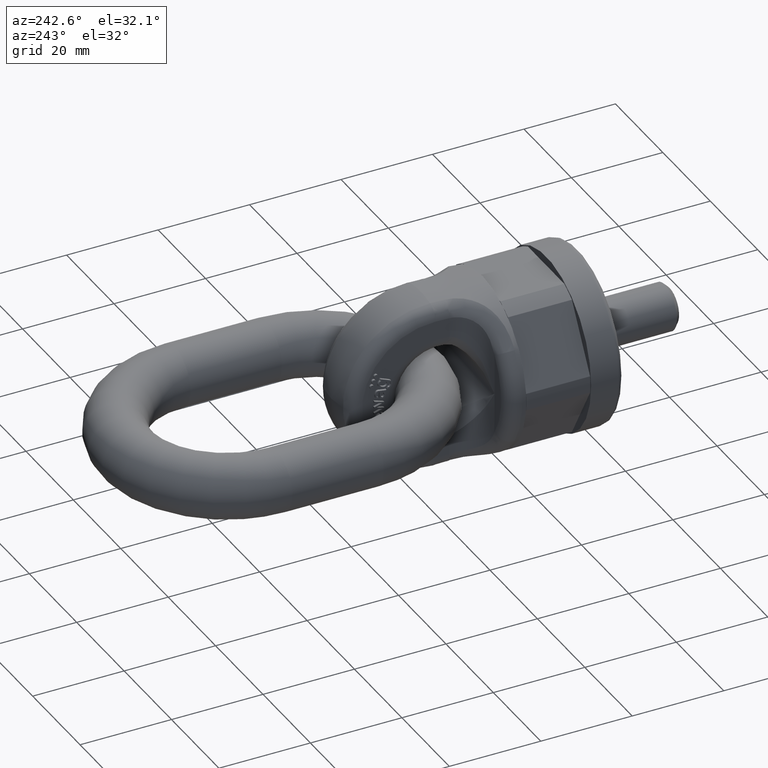
[diagram: clean part render]
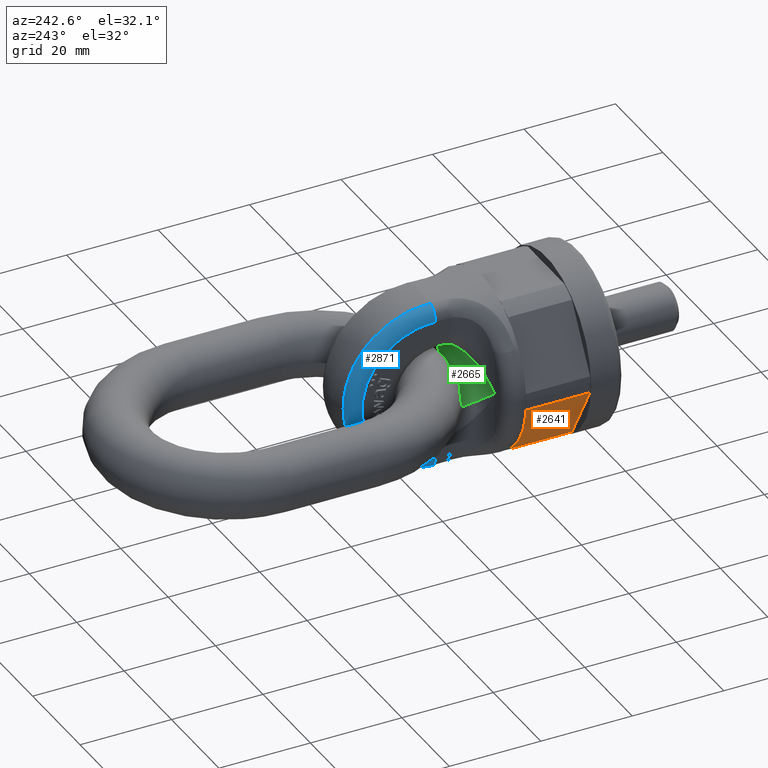
[diagram: same view with three faces highlighted in distinct colors, each labeled with its STEP entity id]
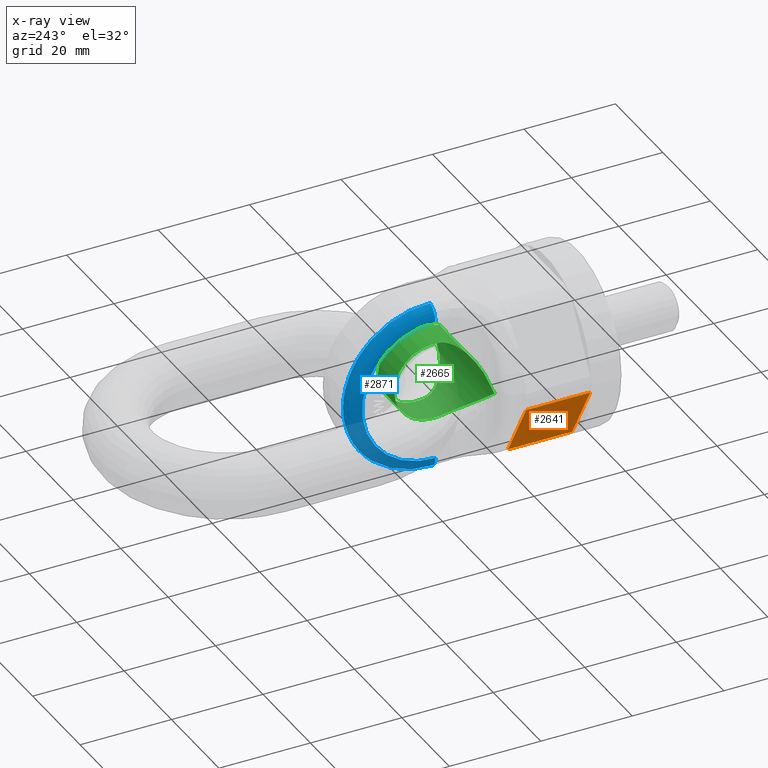
[diagram: x-ray of the same camera — body ghosted, the three highlighted faces saturated]
A machine part, auxiliary view with three faces highlighted in distinct colors.
The next image is the same camera in x-ray (body ghosted, the three faces saturated) — at least one of them is partly hidden behind the body in this view.
Their STEP definitions:

[orange] entity #2641 — the highlighted planar face has unit normal (-0.866, 0, -0.5).
#1799=FACE_OUTER_BOUND('',#3064,.T.);
#2036=LINE('',#6582,#2292);
#2042=LINE('',#6603,#2298);
#2043=LINE('',#6605,#2299);
#2044=LINE('',#6607,#2300);
#2292=VECTOR('',#5820,1.);
#2298=VECTOR('',#5840,1.);
#2299=VECTOR('',#5841,1.);
#2300=VECTOR('',#5842,1.);
#2641=ADVANCED_FACE('',(#1799),#2883,.T.);
#2883=PLANE('',#5610);
#3064=EDGE_LOOP('',(#3364,#3365,#3366,#3367));
#3364=ORIENTED_EDGE('',*,*,#4952,.F.);
#3365=ORIENTED_EDGE('',*,*,#4942,.T.);
#3366=ORIENTED_EDGE('',*,*,#4953,.F.);
#3367=ORIENTED_EDGE('',*,*,#4954,.T.);
#4544=VERTEX_POINT('',#6581);
#4545=VERTEX_POINT('',#6583);
#4553=VERTEX_POINT('',#6604);
#4554=VERTEX_POINT('',#6606);
#4942=EDGE_CURVE('',#4545,#4544,#2036,.T.);
#4952=EDGE_CURVE('',#4545,#4553,#2042,.T.);
#4953=EDGE_CURVE('',#4554,#4544,#2043,.T.);
#4954=EDGE_CURVE('',#4554,#4553,#2044,.T.);
#5610=AXIS2_PLACEMENT_3D('',#6608,#5843,#5844);
#5820=DIRECTION('',(-0.499999999999999,-1.91351062366774E-17,0.866025403784439));
#5840=DIRECTION('',(-2.4492935982947E-17,1.,0.));
#5841=DIRECTION('',(2.4492935982947E-17,-1.,0.));
#5842=DIRECTION('',(0.499999999999999,0.,-0.866025403784439));
#5843=DIRECTION('',(-0.866025403784439,0.,-0.499999999999999));
#5844=DIRECTION('',(-0.499999999999999,0.,0.866025403784439));
#6581=CARTESIAN_POINT('',(-18.5552941542323,7.,-1.86128777548383));
#6582=CARTESIAN_POINT('',(-9.97243186433546,7.,-16.7272413359521));
#6583=CARTESIAN_POINT('',(-10.8895695744386,7.,-15.1387122245161));
#6603=CARTESIAN_POINT('',(-10.8895695744386,9.38780506978953E-17,-15.1387122245161));
#6604=CARTESIAN_POINT('',(-10.8895695744386,21.,-15.1387122245161));
#6605=CARTESIAN_POINT('',(-18.5552941542323,-9.38780506978953E-17,-1.86128777548383));
#6606=CARTESIAN_POINT('',(-18.5552941542323,21.,-1.86128777548383));
#6607=CARTESIAN_POINT('',(-19.6299091524472,21.,0.));
#6608=CARTESIAN_POINT('',(-19.6299091524472,21.,0.));

[blue] entity #2871 — the highlighted toroidal blend (fillet) surface has major radius 15.6125 mm and minor (blend) radius 3 mm.
#1794=TOROIDAL_SURFACE('',#5789,15.612494995996,3.);
#2007=FACE_OUTER_BOUND('',#3330,.T.);
#2871=ADVANCED_FACE('',(#2007),#1794,.T.);
#3330=EDGE_LOOP('',(#4509,#4510,#4511,#4512));
#4509=ORIENTED_EDGE('',*,*,#5520,.T.);
#4510=ORIENTED_EDGE('',*,*,#5071,.F.);
#4511=ORIENTED_EDGE('',*,*,#5522,.F.);
#4512=ORIENTED_EDGE('',*,*,#5289,.F.);
#4647=VERTEX_POINT('',#7019);
#4654=VERTEX_POINT('',#7057);
#4785=VERTEX_POINT('',#8381);
#4786=VERTEX_POINT('',#8383);
#5071=EDGE_CURVE('',#4647,#4654,#5558,.T.);
#5289=EDGE_CURVE('',#4785,#4786,#5578,.T.);
#5520=EDGE_CURVE('',#4785,#4654,#5586,.T.);
#5522=EDGE_CURVE('',#4786,#4647,#5588,.T.);
#5558=CIRCLE('',#5650,18.5398378077452);
#5578=CIRCLE('',#5725,15.612494995996);
#5586=CIRCLE('',#5786,3.);
#5588=CIRCLE('',#5788,3.);
#5650=AXIS2_PLACEMENT_3D('',#7087,#5971,#5972);
#5725=AXIS2_PLACEMENT_3D('',#8382,#6255,#6256);
#5786=AXIS2_PLACEMENT_3D('',#9608,#6531,#6532);
#5788=AXIS2_PLACEMENT_3D('',#9652,#6535,#6536);
#5789=AXIS2_PLACEMENT_3D('',#9653,#6537,#6538);
#5971=DIRECTION('',(1.,3.58908305374512E-16,2.34291072916505E-15));
#5972=DIRECTION('',(3.74269396305529E-16,-1.,8.31045002381911E-31));
#6255=DIRECTION('',(-1.,-3.58908305374512E-16,-2.34291072916505E-15));
#6256=DIRECTION('',(-3.33333681084611E-16,1.,-7.89492752262815E-31));
#6531=DIRECTION('',(-6.13425522721431E-17,0.999657187497484,0.0261821978569384));
#6532=DIRECTION('',(2.31296463463574E-15,0.0261821978569388,-0.999657187497484));
#6535=DIRECTION('',(-6.13425522721431E-17,-0.999657187497484,0.0261821978569384));
#6536=DIRECTION('',(-2.31296463463574E-15,0.0261821978569388,0.999657187497484));
#6537=DIRECTION('',(-1.,-3.58908305374512E-16,-2.34291072916505E-15));
#6538=DIRECTION('',(-3.49507846009493E-16,1.,-8.27800870244017E-31));
#7019=CARTESIAN_POINT('',(-4.15624999999995,34.514586298282,-18.5334821195501));
#7057=CARTESIAN_POINT('',(-4.15625000000004,34.514586298282,18.5334821195501));
#7087=CARTESIAN_POINT('',(-4.15625,35.,-9.73772271809223E-15));
#8381=CARTESIAN_POINT('',(-6.50000000000003,34.5912305669744,15.6071428375159));
#8382=CARTESIAN_POINT('',(-6.5,35.,-1.52289197395728E-14));
#8383=CARTESIAN_POINT('',(-6.49999999999996,34.5912305669744,-15.6071428375159));
#9608=CARTESIAN_POINT('',(-3.50000000000003,34.5912305669744,15.6071428375159));
#9652=CARTESIAN_POINT('',(-3.49999999999996,34.5912305669744,-15.6071428375159));
#9653=CARTESIAN_POINT('',(-3.5,35.,-8.20018755207766E-15));

[green] entity #2665 — the highlighted cylindrical surface (bore or boss wall) has radius 8.5 mm, axis along (-1, 0, 0).
#357=B_SPLINE_CURVE_WITH_KNOTS('',3,(#7096,#7097,#7098,#7099,#7100,#7101,
#7102,#7103),.UNSPECIFIED.,.F.,.F.,(4,2,2,4),(0.,0.25,0.5,1.),
 .UNSPECIFIED.);
#358=B_SPLINE_CURVE_WITH_KNOTS('',3,(#7104,#7105,#7106,#7107,#7108,#7109,
#7110,#7111),.UNSPECIFIED.,.F.,.F.,(4,2,2,4),(0.,0.5,0.75,1.),
 .UNSPECIFIED.);
#359=B_SPLINE_CURVE_WITH_KNOTS('',3,(#7115,#7116,#7117,#7118,#7119,#7120,
#7121,#7122),.UNSPECIFIED.,.F.,.F.,(4,2,2,4),(0.,0.25,0.5,1.),
 .UNSPECIFIED.);
#360=B_SPLINE_CURVE_WITH_KNOTS('',3,(#7124,#7125,#7126,#7127,#7128,#7129,
#7130,#7131),.UNSPECIFIED.,.F.,.F.,(4,2,2,4),(0.,0.5,0.75,1.),
 .UNSPECIFIED.);
#2022=CYLINDRICAL_SURFACE('',#5658,8.5);
#2665=ADVANCED_FACE('',(#3010,#3011),#2022,.F.);
#3010=FACE_BOUND('',#3101,.T.);
#3011=FACE_BOUND('',#3102,.T.);
#3101=EDGE_LOOP('',(#3534,#3535,#3536));
#3102=EDGE_LOOP('',(#3537,#3538,#3539));
#3534=ORIENTED_EDGE('',*,*,#5074,.T.);
#3535=ORIENTED_EDGE('',*,*,#5075,.T.);
#3536=ORIENTED_EDGE('',*,*,#5076,.T.);
#3537=ORIENTED_EDGE('',*,*,#5077,.T.);
#3538=ORIENTED_EDGE('',*,*,#5078,.T.);
#3539=ORIENTED_EDGE('',*,*,#5079,.T.);
#4642=VERTEX_POINT('',#6972);
#4658=VERTEX_POINT('',#7094);
#4659=VERTEX_POINT('',#7095);
#4660=VERTEX_POINT('',#7113);
#4661=VERTEX_POINT('',#7114);
#4662=VERTEX_POINT('',#7123);
#5074=EDGE_CURVE('',#4658,#4659,#5561,.T.);
#5075=EDGE_CURVE('',#4659,#4642,#357,.T.);
#5076=EDGE_CURVE('',#4642,#4658,#358,.T.);
#5077=EDGE_CURVE('',#4660,#4661,#5562,.T.);
#5078=EDGE_CURVE('',#4661,#4662,#359,.T.);
#5079=EDGE_CURVE('',#4662,#4660,#360,.T.);
#5561=CIRCLE('',#5656,8.5);
#5562=CIRCLE('',#5657,8.5);
#5656=AXIS2_PLACEMENT_3D('',#7093,#5983,#5984);
#5657=AXIS2_PLACEMENT_3D('',#7112,#5985,#5986);
#5658=AXIS2_PLACEMENT_3D('',#7132,#5987,#5988);
#5983=DIRECTION('',(1.,-3.58908305374512E-16,0.));
#5984=DIRECTION('',(3.57148950936401E-16,1.,0.));
#5985=DIRECTION('',(-1.,-3.58908305374512E-16,-2.34291072916505E-15));
#5986=DIRECTION('',(-3.57148950936401E-16,1.,-9.06319973829287E-31));
#5987=DIRECTION('',(-1.,0.,0.));
#5988=DIRECTION('',(0.,0.,1.));
#6972=CARTESIAN_POINT('',(13.,25.,0.));
#7093=CARTESIAN_POINT('',(3.5,33.5,0.));
#7094=CARTESIAN_POINT('',(3.5,32.0217391304348,-8.37046861301757));
#7095=CARTESIAN_POINT('',(3.5,32.0217391304348,8.37046861301757));
#7096=CARTESIAN_POINT('',(3.5,32.0217391304348,8.37046861301757));
#7097=CARTESIAN_POINT('',(3.5,30.718801039141,8.14036412486142));
#7098=CARTESIAN_POINT('',(3.99554953904714,29.5519251802337,7.60966337603335));
#7099=CARTESIAN_POINT('',(5.35751875583322,27.7221647485428,6.33331597869827));
#7100=CARTESIAN_POINT('',(6.20872425476971,27.0370475415328,5.59970090486852));
#7101=CARTESIAN_POINT('',(8.95015468242651,25.4413897059657,3.28852838614067));
#7102=CARTESIAN_POINT('',(10.9825838840881,25.,1.640603798999));
#7103=CARTESIAN_POINT('',(13.,25.,0.));
#7104=CARTESIAN_POINT('',(13.,25.,0.));
#7105=CARTESIAN_POINT('',(10.9825838840881,25.,-1.640603798999));
#7106=CARTESIAN_POINT('',(8.95015468242651,25.4413897059657,-3.28852838614067));
#7107=CARTESIAN_POINT('',(6.20872425476971,27.0370475415328,-5.59970090486852));
#7108=CARTESIAN_POINT('',(5.35751875583322,27.7221647485428,-6.33331597869827));
#7109=CARTESIAN_POINT('',(3.99554953904714,29.5519251802337,-7.60966337603335));
#7110=CARTESIAN_POINT('',(3.5,30.718801039141,-8.14036412486142));
#7111=CARTESIAN_POINT('',(3.5,32.0217391304348,-8.37046861301757));
#7112=CARTESIAN_POINT('',(-3.5,33.5,-8.20018755207767E-15));
#7113=CARTESIAN_POINT('',(-3.50000000000002,32.0217391304348,8.37046861301756));
#7114=CARTESIAN_POINT('',(-3.49999999999998,32.0217391304348,-8.37046861301758));
#7115=CARTESIAN_POINT('',(-3.49999999999998,32.0217391304348,-8.37046861301758));
#7116=CARTESIAN_POINT('',(-3.49999999999998,30.718801039141,-8.14036412486142));
#7117=CARTESIAN_POINT('',(-3.99554953904713,29.5519251802337,-7.60966337603336));
#7118=CARTESIAN_POINT('',(-5.3575187558332,27.7221647485428,-6.33331597869828));
#7119=CARTESIAN_POINT('',(-6.20872425476969,27.0370475415328,-5.59970090486853));
#7120=CARTESIAN_POINT('',(-8.9501546824265,25.4413897059657,-3.28852838614069));
#7121=CARTESIAN_POINT('',(-10.9825838840881,25.,-1.64060379899902));
#7122=CARTESIAN_POINT('',(-13.,25.,-3.04578394791456E-14));
#7123=CARTESIAN_POINT('',(-13.,25.,-3.04578394791456E-14));
#7124=CARTESIAN_POINT('',(-13.,25.,-3.04578394791456E-14));
#7125=CARTESIAN_POINT('',(-10.9825838840881,25.,1.64060379899897));
#7126=CARTESIAN_POINT('',(-8.95015468242652,25.4413897059657,3.28852838614065));
#7127=CARTESIAN_POINT('',(-6.20872425476972,27.0370475415328,5.5997009048685));
#7128=CARTESIAN_POINT('',(-5.35751875583323,27.7221647485428,6.33331597869826));
#7129=CARTESIAN_POINT('',(-3.99554953904716,29.5519251802337,7.60966337603334));
#7130=CARTESIAN_POINT('',(-3.50000000000002,30.718801039141,8.14036412486141));
#7131=CARTESIAN_POINT('',(-3.50000000000002,32.0217391304348,8.37046861301756));
#7132=CARTESIAN_POINT('',(20.625703362156,33.5,0.));